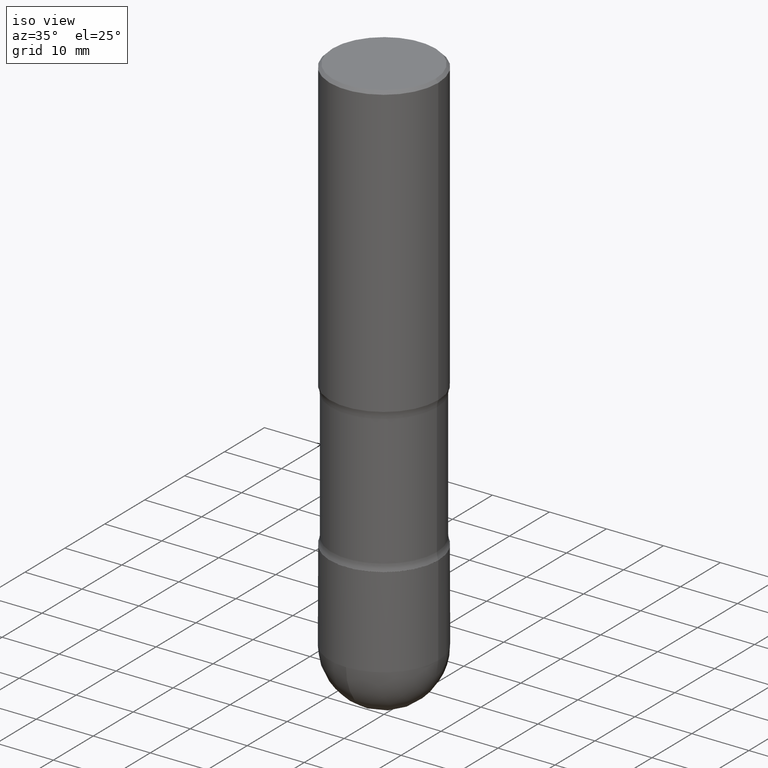
[diagram: clean part render]
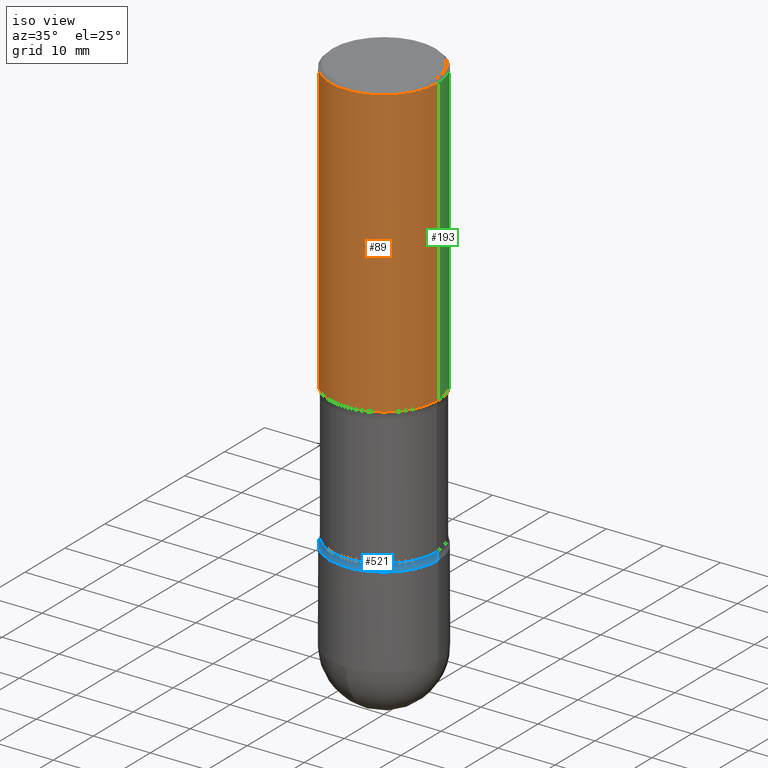
[diagram: same view with three faces highlighted in distinct colors, each labeled with its STEP entity id]
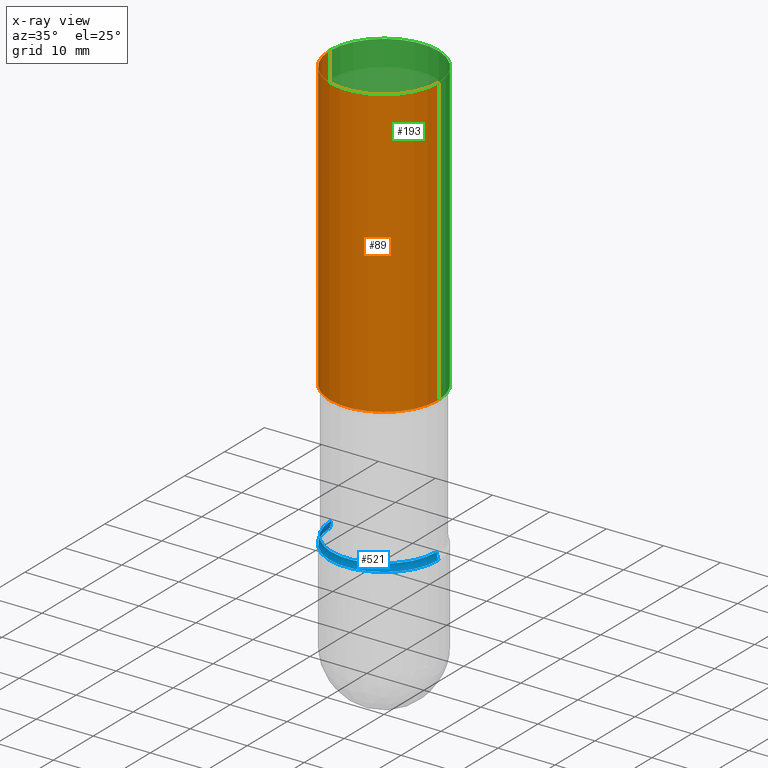
[diagram: x-ray of the same camera — body ghosted, the three highlighted faces saturated]
A machine part, iso view with three faces highlighted in distinct colors.
The next image is the same camera in x-ray (body ghosted, the three faces saturated) — at least one of them is partly hidden behind the body in this view.
Their STEP definitions:

[orange] entity #89 — the highlighted cylindrical surface (partial cylindrical patch) has radius 9.525 mm, axis along (0, -0, -1).
#11 = DIRECTION ( 'NONE',  ( -1.000000000000000000, 6.982962677686266711E-15, 0.000000000000000000 ) ) ;
#66 = DIRECTION ( 'NONE',  ( -1.000000000000000000, 6.982962677686266711E-15, 0.000000000000000000 ) ) ;
#75 = ORIENTED_EDGE ( 'NONE', *, *, #384, .T. ) ;
#76 = VERTEX_POINT ( 'NONE', #199 ) ;
#89 = ADVANCED_FACE ( 'NONE', ( #537 ), #192, .T. ) ;
#103 = CIRCLE ( 'NONE', #327, 0.3749999999999998890 ) ;
#120 = EDGE_CURVE ( 'NONE', #155, #320, #103, .T. ) ;
#135 = CARTESIAN_POINT ( 'NONE',  ( 4.890937612370354609E-31, -6.982962677686407473E-17, -0.02000000000000033348 ) ) ;
#146 = DIRECTION ( 'NONE',  ( 2.445468806185136877E-29, -3.491481338843145188E-15, -1.000000000000000000 ) ) ;
#148 = EDGE_CURVE ( 'NONE', #76, #155, #282, .T. ) ;
#155 = VERTEX_POINT ( 'NONE', #411 ) ;
#170 = VECTOR ( 'NONE', #146, 39.37007874015748143 ) ;
#192 = CYLINDRICAL_SURFACE ( 'NONE', #301, 0.3749999999999997780 ) ;
#199 = CARTESIAN_POINT ( 'NONE',  ( 0.3749999999999996114, -2.642516375941186056E-15, -0.02000000000000033348 ) ) ;
#201 = CIRCLE ( 'NONE', #414, 0.3749999999999996114 ) ;
#226 = CARTESIAN_POINT ( 'NONE',  ( -0.3749999999999996114, 2.548781377355482774E-15, -0.02000000000000033348 ) ) ;
#263 = DIRECTION ( 'NONE',  ( 2.445468806185136877E-29, -3.491481338843145188E-15, -1.000000000000000000 ) ) ;
#276 = DIRECTION ( 'NONE',  ( 2.445468806185136597E-29, -3.491481338843145583E-15, -1.000000000000000000 ) ) ;
#282 = LINE ( 'NONE', #531, #170 ) ;
#301 = AXIS2_PLACEMENT_3D ( 'NONE', #369, #549, #66 ) ;
#320 = VERTEX_POINT ( 'NONE', #475 ) ;
#327 = AXIS2_PLACEMENT_3D ( 'NONE', #486, #276, #361 ) ;
#338 = VECTOR ( 'NONE', #263, 39.37007874015748143 ) ;
#361 = DIRECTION ( 'NONE',  ( -1.000000000000000000, 6.982962677686266711E-15, 0.000000000000000000 ) ) ;
#364 = EDGE_CURVE ( 'NONE', #76, #462, #201, .T. ) ;
#369 = CARTESIAN_POINT ( 'NONE',  ( 7.336406418555408669E-29, -1.047444401652943478E-14, -2.999999999999999556 ) ) ;
#377 = EDGE_LOOP ( 'NONE', ( #435, #436, #75, #508 ) ) ;
#384 = EDGE_CURVE ( 'NONE', #462, #320, #396, .T. ) ;
#396 = LINE ( 'NONE', #442, #338 ) ;
#400 = DIRECTION ( 'NONE',  ( 2.445468806185136597E-29, -3.491481338843145583E-15, -1.000000000000000000 ) ) ;
#411 = CARTESIAN_POINT ( 'NONE',  ( 0.3749999999999998890, -6.099082901395903540E-15, -2.000000000000002665 ) ) ;
#414 = AXIS2_PLACEMENT_3D ( 'NONE', #135, #400, #11 ) ;
#435 = ORIENTED_EDGE ( 'NONE', *, *, #148, .F. ) ;
#436 = ORIENTED_EDGE ( 'NONE', *, *, #364, .T. ) ;
#442 = CARTESIAN_POINT ( 'NONE',  ( -0.3749999999999997780, -7.855833012397086337E-15, -2.999999999999999556 ) ) ;
#462 = VERTEX_POINT ( 'NONE', #226 ) ;
#475 = CARTESIAN_POINT ( 'NONE',  ( -0.3749999999999998890, -4.364351673553951404E-15, -2.000000000000002665 ) ) ;
#486 = CARTESIAN_POINT ( 'NONE',  ( 4.890937612370279359E-29, -6.982962677686300632E-15, -2.000000000000002665 ) ) ;
#508 = ORIENTED_EDGE ( 'NONE', *, *, #120, .F. ) ;
#531 = CARTESIAN_POINT ( 'NONE',  ( 0.3749999999999997780, -1.304713076569375753E-14, -2.999999999999999556 ) ) ;
#537 = FACE_OUTER_BOUND ( 'NONE', #377, .T. ) ;
#549 = DIRECTION ( 'NONE',  ( 2.445468806185136597E-29, -3.491481338843145583E-15, -1.000000000000000000 ) ) ;

[blue] entity #521 — the highlighted toroidal blend (fillet) surface has major radius 12.446 mm and minor (blend) radius 3.175 mm.
#15 = AXIS2_PLACEMENT_3D ( 'NONE', #77, #250, #429 ) ;
#21 = EDGE_CURVE ( 'NONE', #565, #43, #337, .T. ) ;
#43 = VERTEX_POINT ( 'NONE', #330 ) ;
#48 = AXIS2_PLACEMENT_3D ( 'NONE', #540, #493, #231 ) ;
#77 = CARTESIAN_POINT ( 'NONE',  ( 7.216603403414475810E-29, -1.030339706199713222E-14, -2.951010205144336318 ) ) ;
#91 = DIRECTION ( 'NONE',  ( -1.000000000000000000, 6.982962677686267499E-15, 0.000000000000000000 ) ) ;
#169 = DIRECTION ( 'NONE',  ( 2.445468806185136597E-29, -3.491481338843145583E-15, -1.000000000000000000 ) ) ;
#176 = DIRECTION ( 'NONE',  ( -1.000000000000000000, 6.982962677686266711E-15, 0.000000000000000000 ) ) ;
#180 = CARTESIAN_POINT ( 'NONE',  ( 0.3748510749934464426, -1.304488329419632673E-14, -2.999648925006553224 ) ) ;
#184 = ORIENTED_EDGE ( 'NONE', *, *, #21, .F. ) ;
#200 = AXIS2_PLACEMENT_3D ( 'NONE', #312, #484, #176 ) ;
#220 = CARTESIAN_POINT ( 'NONE',  ( 7.216603403414474689E-29, -1.030339706199713064E-14, -2.951010205144335874 ) ) ;
#231 = DIRECTION ( 'NONE',  ( -1.000000000000000000, 6.860497997771529196E-15, 0.000000000000000000 ) ) ;
#250 = DIRECTION ( 'NONE',  ( 2.445468806185136597E-29, -3.491481338843145583E-15, -1.000000000000000000 ) ) ;
#254 = EDGE_LOOP ( 'NONE', ( #184, #456, #428, #529 ) ) ;
#255 = CARTESIAN_POINT ( 'NONE',  ( 0.3649999999999996581, -1.123278511629446961E-14, -2.951010205144335874 ) ) ;
#278 = EDGE_CURVE ( 'NONE', #565, #548, #292, .T. ) ;
#292 = CIRCLE ( 'NONE', #48, 0.1250000000000003053 ) ;
#306 = CARTESIAN_POINT ( 'NONE',  ( -0.4899999999999999911, -6.881745349930862950E-15, -2.951010205144336318 ) ) ;
#312 = CARTESIAN_POINT ( 'NONE',  ( 7.335547875610304013E-29, -1.047321824474128255E-14, -2.999648925006553224 ) ) ;
#330 = CARTESIAN_POINT ( 'NONE',  ( -0.3748510749934464426, -7.855647178371469509E-15, -2.999648925006553224 ) ) ;
#334 = EDGE_CURVE ( 'NONE', #548, #558, #480, .T. ) ;
#337 = CIRCLE ( 'NONE', #200, 0.3748510749934464426 ) ;
#354 = DIRECTION ( 'NONE',  ( -6.982962677686266711E-15, -1.000000000000000000, 3.491481338843145583E-15 ) ) ;
#359 = EDGE_CURVE ( 'NONE', #43, #558, #546, .T. ) ;
#363 = TOROIDAL_SURFACE ( 'NONE', #15, 0.4899999999999999911, 0.1250000000000003053 ) ;
#380 = CARTESIAN_POINT ( 'NONE',  ( -0.3649999999999996581, -7.754615684641645500E-15, -2.951010205144335874 ) ) ;
#428 = ORIENTED_EDGE ( 'NONE', *, *, #334, .T. ) ;
#429 = DIRECTION ( 'NONE',  ( -1.000000000000000000, 6.982962677686266711E-15, -4.883557194083112901E-29 ) ) ;
#456 = ORIENTED_EDGE ( 'NONE', *, *, #278, .T. ) ;
#461 = AXIS2_PLACEMENT_3D ( 'NONE', #220, #169, #91 ) ;
#480 = CIRCLE ( 'NONE', #461, 0.3649999999999996581 ) ;
#484 = DIRECTION ( 'NONE',  ( 2.445468806185136597E-29, -3.491481338843145583E-15, -1.000000000000000000 ) ) ;
#493 = DIRECTION ( 'NONE',  ( 6.860497997771531562E-15, 1.000000000000000000, -3.491481338843145583E-15 ) ) ;
#515 = AXIS2_PLACEMENT_3D ( 'NONE', #306, #354, #524 ) ;
#521 = ADVANCED_FACE ( 'NONE', ( #554 ), #363, .F. ) ;
#524 = DIRECTION ( 'NONE',  ( 1.000000000000000000, -6.982962677686269077E-15, 0.000000000000000000 ) ) ;
#529 = ORIENTED_EDGE ( 'NONE', *, *, #359, .F. ) ;
#540 = CARTESIAN_POINT ( 'NONE',  ( 0.4899999999999999911, -1.366504108090518306E-14, -2.951010205144336318 ) ) ;
#546 = CIRCLE ( 'NONE', #515, 0.1250000000000003053 ) ;
#548 = VERTEX_POINT ( 'NONE', #255 ) ;
#554 = FACE_OUTER_BOUND ( 'NONE', #254, .T. ) ;
#558 = VERTEX_POINT ( 'NONE', #380 ) ;
#565 = VERTEX_POINT ( 'NONE', #180 ) ;

[green] entity #193 — the highlighted cylindrical surface (partial cylindrical patch) has radius 9.525 mm, axis along (0, -0, -1).
#74 = ORIENTED_EDGE ( 'NONE', *, *, #148, .T. ) ;
#76 = VERTEX_POINT ( 'NONE', #199 ) ;
#123 = EDGE_CURVE ( 'NONE', #320, #155, #309, .T. ) ;
#127 = EDGE_LOOP ( 'NONE', ( #379, #74, #467, #410 ) ) ;
#136 = DIRECTION ( 'NONE',  ( 2.445468806185136597E-29, -3.491481338843145583E-15, -1.000000000000000000 ) ) ;
#141 = CARTESIAN_POINT ( 'NONE',  ( 7.336406418555408669E-29, -1.047444401652943478E-14, -2.999999999999999556 ) ) ;
#143 = DIRECTION ( 'NONE',  ( -1.000000000000000000, 6.982962677686266711E-15, 0.000000000000000000 ) ) ;
#146 = DIRECTION ( 'NONE',  ( 2.445468806185136877E-29, -3.491481338843145188E-15, -1.000000000000000000 ) ) ;
#148 = EDGE_CURVE ( 'NONE', #76, #155, #282, .T. ) ;
#155 = VERTEX_POINT ( 'NONE', #411 ) ;
#170 = VECTOR ( 'NONE', #146, 39.37007874015748143 ) ;
#193 = ADVANCED_FACE ( 'NONE', ( #357 ), #391, .T. ) ;
#199 = CARTESIAN_POINT ( 'NONE',  ( 0.3749999999999996114, -2.642516375941186056E-15, -0.02000000000000033348 ) ) ;
#226 = CARTESIAN_POINT ( 'NONE',  ( -0.3749999999999996114, 2.548781377355482774E-15, -0.02000000000000033348 ) ) ;
#263 = DIRECTION ( 'NONE',  ( 2.445468806185136877E-29, -3.491481338843145188E-15, -1.000000000000000000 ) ) ;
#273 = DIRECTION ( 'NONE',  ( 2.445468806185136597E-29, -3.491481338843145583E-15, -1.000000000000000000 ) ) ;
#282 = LINE ( 'NONE', #531, #170 ) ;
#309 = CIRCLE ( 'NONE', #355, 0.3749999999999998890 ) ;
#314 = DIRECTION ( 'NONE',  ( -1.000000000000000000, 6.982962677686266711E-15, 0.000000000000000000 ) ) ;
#320 = VERTEX_POINT ( 'NONE', #475 ) ;
#338 = VECTOR ( 'NONE', #263, 39.37007874015748143 ) ;
#343 = EDGE_CURVE ( 'NONE', #462, #76, #383, .T. ) ;
#345 = AXIS2_PLACEMENT_3D ( 'NONE', #141, #273, #143 ) ;
#355 = AXIS2_PLACEMENT_3D ( 'NONE', #448, #494, #491 ) ;
#357 = FACE_OUTER_BOUND ( 'NONE', #127, .T. ) ;
#379 = ORIENTED_EDGE ( 'NONE', *, *, #343, .T. ) ;
#383 = CIRCLE ( 'NONE', #443, 0.3749999999999996114 ) ;
#384 = EDGE_CURVE ( 'NONE', #462, #320, #396, .T. ) ;
#391 = CYLINDRICAL_SURFACE ( 'NONE', #345, 0.3749999999999997780 ) ;
#396 = LINE ( 'NONE', #442, #338 ) ;
#410 = ORIENTED_EDGE ( 'NONE', *, *, #384, .F. ) ;
#411 = CARTESIAN_POINT ( 'NONE',  ( 0.3749999999999998890, -6.099082901395903540E-15, -2.000000000000002665 ) ) ;
#442 = CARTESIAN_POINT ( 'NONE',  ( -0.3749999999999997780, -7.855833012397086337E-15, -2.999999999999999556 ) ) ;
#443 = AXIS2_PLACEMENT_3D ( 'NONE', #523, #136, #314 ) ;
#448 = CARTESIAN_POINT ( 'NONE',  ( 4.890937612370279359E-29, -6.982962677686300632E-15, -2.000000000000002665 ) ) ;
#462 = VERTEX_POINT ( 'NONE', #226 ) ;
#467 = ORIENTED_EDGE ( 'NONE', *, *, #123, .F. ) ;
#475 = CARTESIAN_POINT ( 'NONE',  ( -0.3749999999999998890, -4.364351673553951404E-15, -2.000000000000002665 ) ) ;
#491 = DIRECTION ( 'NONE',  ( -1.000000000000000000, 6.982962677686266711E-15, 0.000000000000000000 ) ) ;
#494 = DIRECTION ( 'NONE',  ( 2.445468806185136597E-29, -3.491481338843145583E-15, -1.000000000000000000 ) ) ;
#523 = CARTESIAN_POINT ( 'NONE',  ( 4.890937612370354609E-31, -6.982962677686407473E-17, -0.02000000000000033348 ) ) ;
#531 = CARTESIAN_POINT ( 'NONE',  ( 0.3749999999999997780, -1.304713076569375753E-14, -2.999999999999999556 ) ) ;